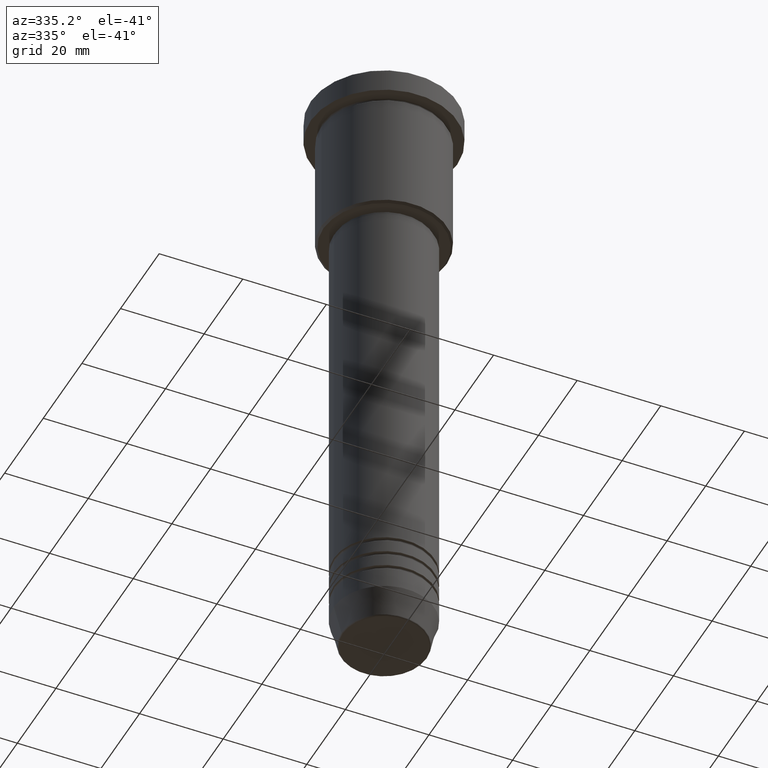
[diagram: clean part render]
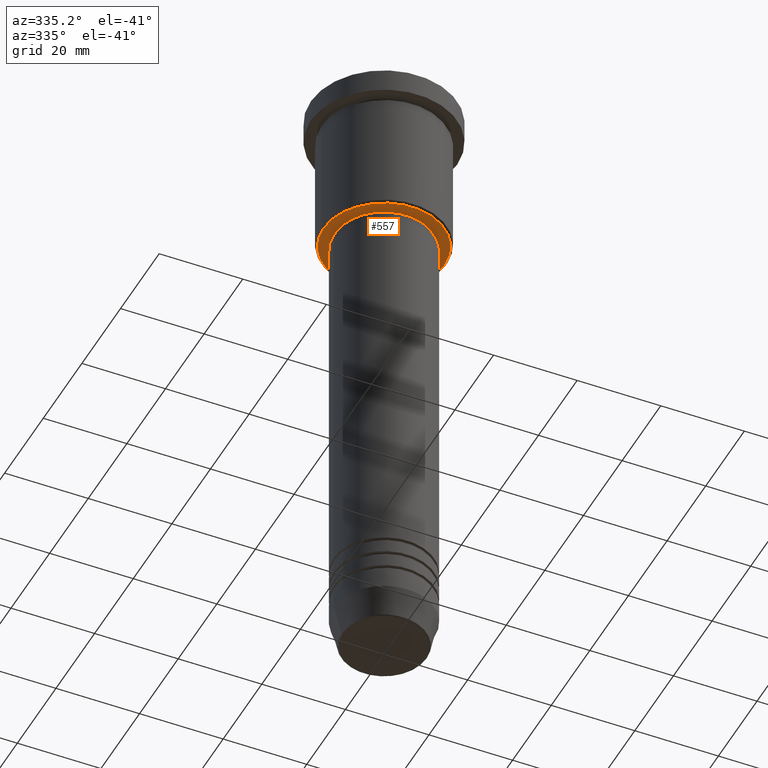
[diagram: same view with one face highlighted and labeled with its STEP entity id]
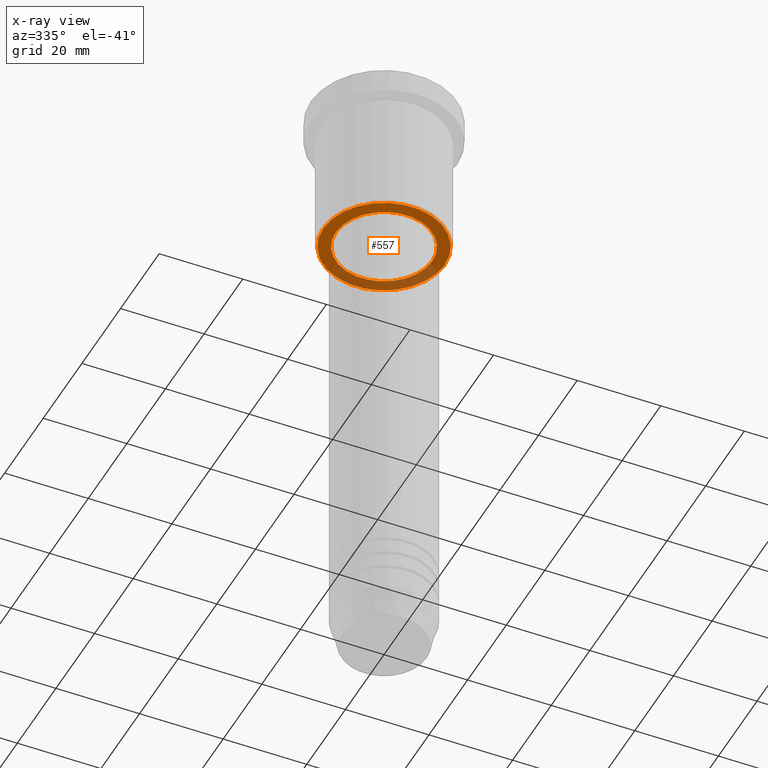
[diagram: x-ray of the same camera — body ghosted, the highlighted face saturated]
A machine part, auxiliary view. The second image highlights one B-rep face of the part: STEP entity #557.
The next image is the same camera in x-ray: the body ghosted, the highlighted face saturated — about 32% of this face is hidden behind the body in this view.
In plain terms, the highlighted planar face has unit normal (0, 0, -1).
Its self-contained STEP definition (entity closure, byte-faithful):
#127 = EDGE_CURVE ( 'NONE', #602, #334, #259, .T. ) ;
#130 = CARTESIAN_POINT ( 'NONE',  ( 14.49999999999998401, 0.000000000000000000, -36.00000000000000711 ) ) ;
#233 = DIRECTION ( 'NONE',  ( 0.000000000000000000, 0.000000000000000000, -1.000000000000000000 ) ) ;
#242 = AXIS2_PLACEMENT_3D ( 'NONE', #374, #370, #1003 ) ;
#259 = CIRCLE ( 'NONE', #394, 14.49999999999998401 ) ;
#278 = DIRECTION ( 'NONE',  ( 1.000000000000000000, 0.000000000000000000, 0.000000000000000000 ) ) ;
#304 = AXIS2_PLACEMENT_3D ( 'NONE', #431, #1161, #798 ) ;
#306 = CARTESIAN_POINT ( 'NONE',  ( -14.49999999999998401, 1.806354028742345013E-15, -36.00000000000000711 ) ) ;
#310 = CARTESIAN_POINT ( 'NONE',  ( -11.50000000000000000, 1.408343819019456176E-15, -36.00000000000000000 ) ) ;
#334 = VERTEX_POINT ( 'NONE', #130 ) ;
#362 = CIRCLE ( 'NONE', #608, 14.49999999999998401 ) ;
#370 = DIRECTION ( 'NONE',  ( 0.000000000000000000, 0.000000000000000000, -1.000000000000000000 ) ) ;
#374 = CARTESIAN_POINT ( 'NONE',  ( 0.000000000000000000, 15.00000000000000000, -36.00000000000000711 ) ) ;
#379 = AXIS2_PLACEMENT_3D ( 'NONE', #1178, #1091, #278 ) ;
#382 = EDGE_LOOP ( 'NONE', ( #632, #1101 ) ) ;
#394 = AXIS2_PLACEMENT_3D ( 'NONE', #824, #1004, #461 ) ;
#411 = CIRCLE ( 'NONE', #304, 11.50000000000000000 ) ;
#431 = CARTESIAN_POINT ( 'NONE',  ( 0.000000000000000000, 0.000000000000000000, -36.00000000000000000 ) ) ;
#437 = EDGE_CURVE ( 'NONE', #886, #679, #411, .T. ) ;
#461 = DIRECTION ( 'NONE',  ( -1.000000000000000000, 0.000000000000000000, 0.000000000000000000 ) ) ;
#482 = ORIENTED_EDGE ( 'NONE', *, *, #735, .T. ) ;
#502 = CARTESIAN_POINT ( 'NONE',  ( 0.000000000000000000, 0.000000000000000000, -36.00000000000000711 ) ) ;
#522 = EDGE_LOOP ( 'NONE', ( #482, #622 ) ) ;
#557 = ADVANCED_FACE ( 'NONE', ( #971, #1066 ), #572, .T. ) ;
#572 = PLANE ( 'NONE',  #242 ) ;
#602 = VERTEX_POINT ( 'NONE', #306 ) ;
#608 = AXIS2_PLACEMENT_3D ( 'NONE', #502, #233, #1042 ) ;
#622 = ORIENTED_EDGE ( 'NONE', *, *, #127, .T. ) ;
#632 = ORIENTED_EDGE ( 'NONE', *, *, #697, .T. ) ;
#679 = VERTEX_POINT ( 'NONE', #742 ) ;
#697 = EDGE_CURVE ( 'NONE', #679, #886, #849, .T. ) ;
#735 = EDGE_CURVE ( 'NONE', #334, #602, #362, .T. ) ;
#742 = CARTESIAN_POINT ( 'NONE',  ( 11.50000000000000000, 0.000000000000000000, -36.00000000000000000 ) ) ;
#798 = DIRECTION ( 'NONE',  ( 1.000000000000000000, 0.000000000000000000, 0.000000000000000000 ) ) ;
#824 = CARTESIAN_POINT ( 'NONE',  ( 0.000000000000000000, 0.000000000000000000, -36.00000000000000711 ) ) ;
#849 = CIRCLE ( 'NONE', #379, 11.50000000000000000 ) ;
#886 = VERTEX_POINT ( 'NONE', #310 ) ;
#971 = FACE_OUTER_BOUND ( 'NONE', #522, .T. ) ;
#1003 = DIRECTION ( 'NONE',  ( -1.000000000000000000, 0.000000000000000000, -0.000000000000000000 ) ) ;
#1004 = DIRECTION ( 'NONE',  ( 0.000000000000000000, 0.000000000000000000, -1.000000000000000000 ) ) ;
#1042 = DIRECTION ( 'NONE',  ( -1.000000000000000000, 0.000000000000000000, 0.000000000000000000 ) ) ;
#1066 = FACE_BOUND ( 'NONE', #382, .T. ) ;
#1091 = DIRECTION ( 'NONE',  ( -0.000000000000000000, -0.000000000000000000, 1.000000000000000000 ) ) ;
#1101 = ORIENTED_EDGE ( 'NONE', *, *, #437, .T. ) ;
#1161 = DIRECTION ( 'NONE',  ( -0.000000000000000000, -0.000000000000000000, 1.000000000000000000 ) ) ;
#1178 = CARTESIAN_POINT ( 'NONE',  ( 0.000000000000000000, 0.000000000000000000, -36.00000000000000000 ) ) ;